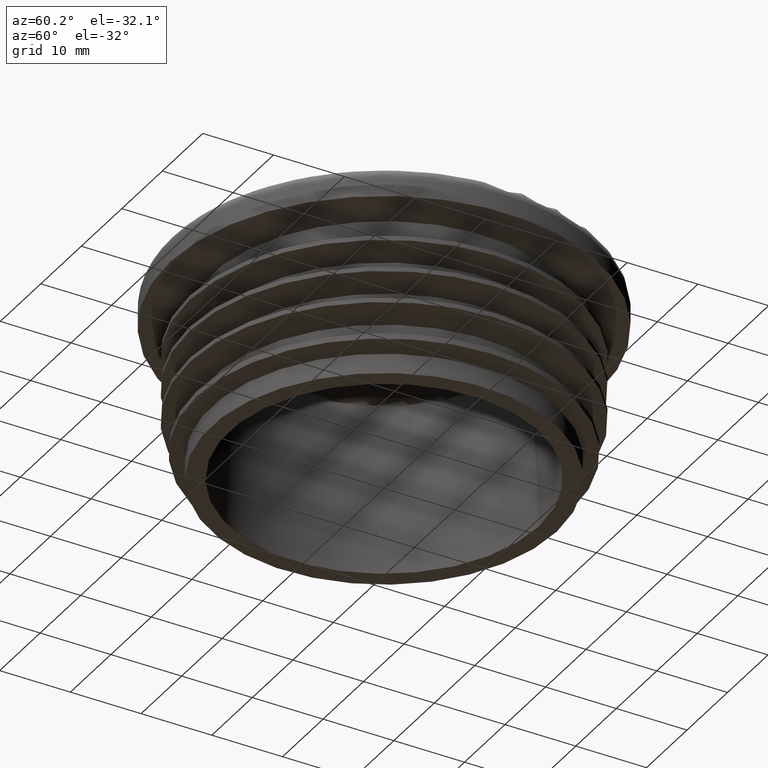
[diagram: clean part render]
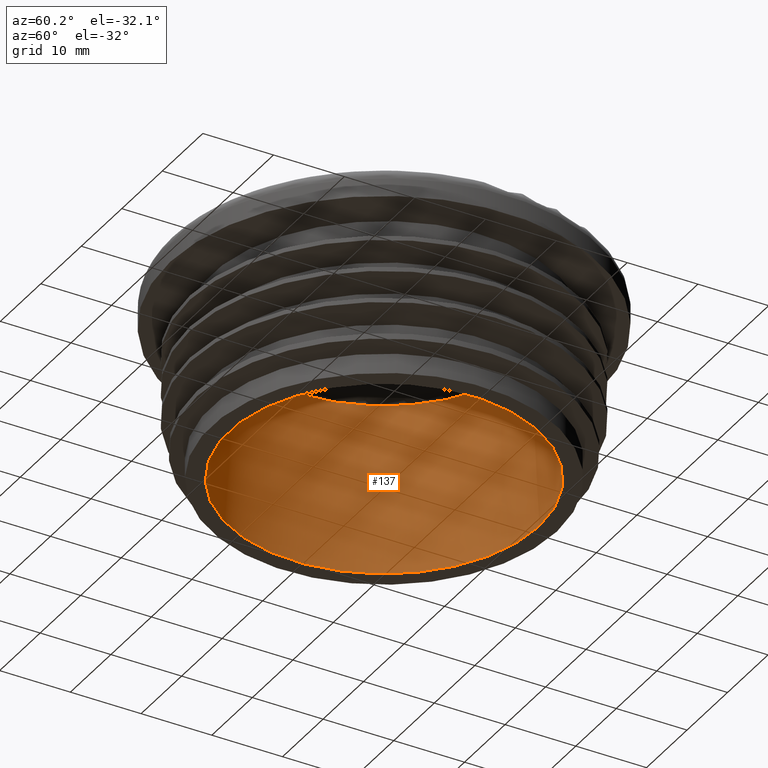
[diagram: same view with one face highlighted and labeled with its STEP entity id]
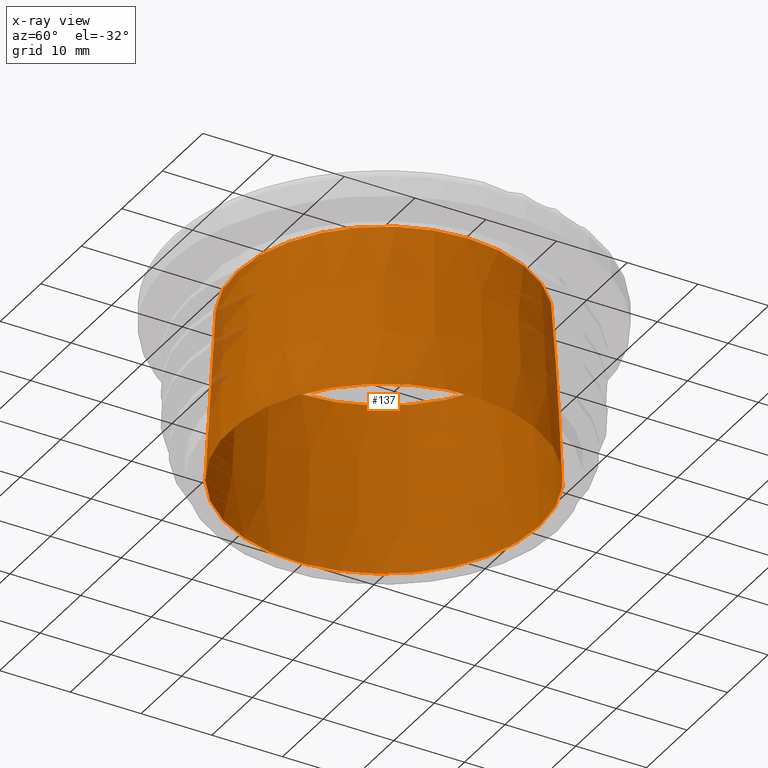
[diagram: x-ray of the same camera — body ghosted, the highlighted face saturated]
A machine part, auxiliary view. The second image highlights one B-rep face of the part: STEP entity #137.
The next image is the same camera in x-ray: the body ghosted, the highlighted face saturated — about 4% of this face is hidden behind the body in this view.
In plain terms, the highlighted conical surface has half-angle 3 deg.
Its self-contained STEP definition (entity closure, byte-faithful):
#137 = ADVANCED_FACE( '', ( #300, #301 ), #302, .F. );
#300 = FACE_BOUND( '', #791, .T. );
#301 = FACE_OUTER_BOUND( '', #792, .T. );
#302 = CONICAL_SURFACE( '', #793, 21.9500000000000, 0.0523598775598292 );
#791 = EDGE_LOOP( '', ( #1418 ) );
#792 = EDGE_LOOP( '', ( #1419 ) );
#793 = AXIS2_PLACEMENT_3D( '', #1420, #1421, #1422 );
#1418 = ORIENTED_EDGE( '', *, *, #1665, .F. );
#1419 = ORIENTED_EDGE( '', *, *, #1666, .T. );
#1420 = CARTESIAN_POINT( '', ( 0.000000000000000, -1.34706698920462E-015, 0.000000000000000 ) );
#1421 = DIRECTION( '', ( 0.000000000000000, -6.12303176911189E-017, -1.00000000000000 ) );
#1422 = DIRECTION( '', ( 0.000000000000000, 1.00000000000000, -6.12303176911189E-017 ) );
#1665 = EDGE_CURVE( '', #1924, #1924, #1925, .T. );
#1666 = EDGE_CURVE( '', #1926, #1926, #1927, .T. );
#1924 = VERTEX_POINT( '', #3312 );
#1925 = CIRCLE( '', #3313, 20.7156743756052 );
#1926 = VERTEX_POINT( '', #3314 );
#1927 = CIRCLE( '', #3315, 21.9500000000000 );
#3312 = CARTESIAN_POINT( '', ( 0.000000000000000, 20.7156743756052, 23.5523359562429 ) );
#3313 = AXIS2_PLACEMENT_3D( '', #3407, #3408, #3409 );
#3314 = CARTESIAN_POINT( '', ( 0.000000000000000, 21.9500000000000, -1.34400547332006E-015 ) );
#3315 = AXIS2_PLACEMENT_3D( '', #3410, #3411, #3412 );
#3407 = CARTESIAN_POINT( '', ( 0.000000000000000, 9.50500237641014E-017, 23.5523359562429 ) );
#3408 = DIRECTION( '', ( 0.000000000000000, -6.12303176911189E-017, -1.00000000000000 ) );
#3409 = DIRECTION( '', ( 0.000000000000000, 1.00000000000000, -6.12303176911189E-017 ) );
#3410 = CARTESIAN_POINT( '', ( 0.000000000000000, -1.34706698920462E-015, 0.000000000000000 ) );
#3411 = DIRECTION( '', ( 0.000000000000000, -6.12303176911189E-017, -1.00000000000000 ) );
#3412 = DIRECTION( '', ( 0.000000000000000, 1.00000000000000, -6.12303176911189E-017 ) );